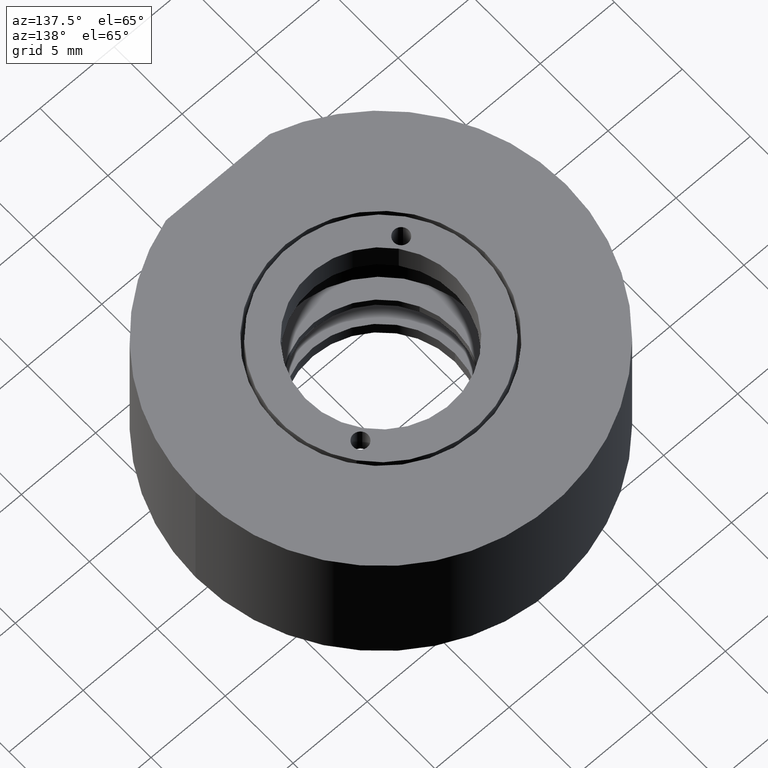
[diagram: clean part render]
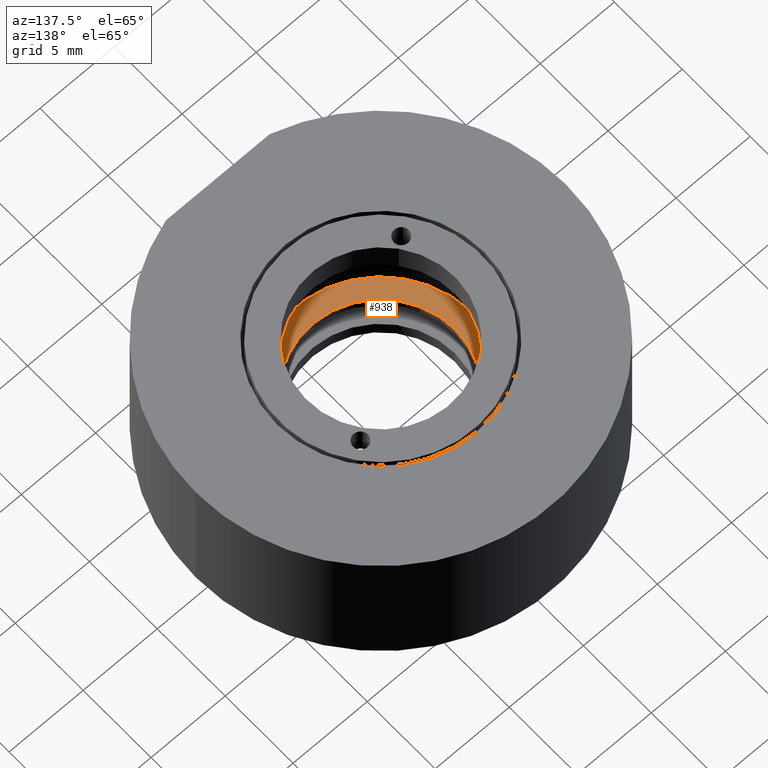
[diagram: same view with one face highlighted and labeled with its STEP entity id]
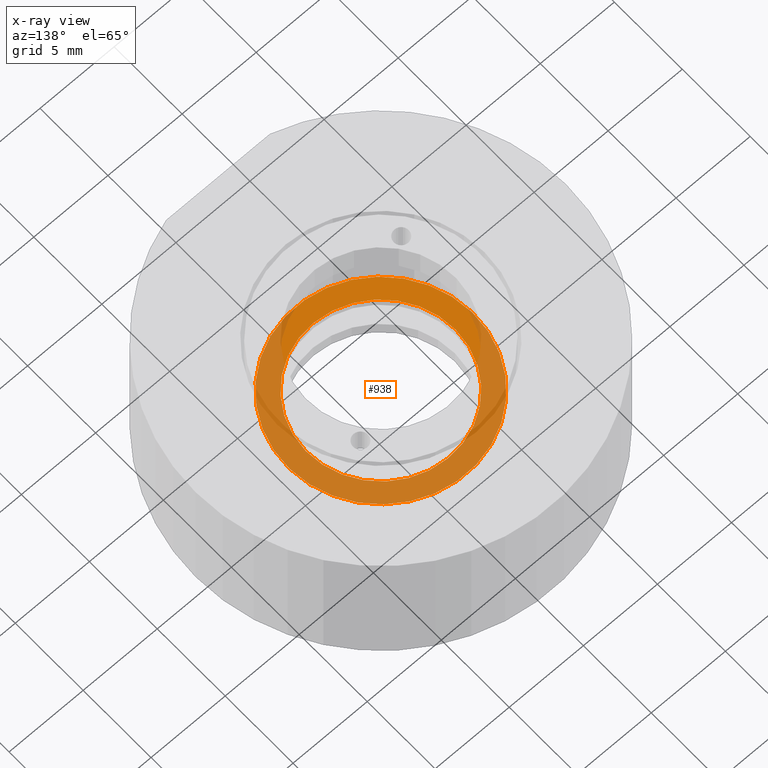
[diagram: x-ray of the same camera — body ghosted, the highlighted face saturated]
A machine part, auxiliary view. The second image highlights one B-rep face of the part: STEP entity #938.
The next image is the same camera in x-ray: the body ghosted, the highlighted face saturated — about 67% of this face is hidden behind the body in this view.
In plain terms, the highlighted planar face has unit normal (0, -0, 1).
Its self-contained STEP definition (entity closure, byte-faithful):
#1 = ORIENTED_EDGE ( 'NONE', *, *, #23, .T. ) ;
#23 = EDGE_CURVE ( 'NONE', #833, #99, #239, .T. ) ;
#26 = DIRECTION ( 'NONE',  ( 0.9070069596605020400, 0.4211156315400941800, 0.0000000000000000000 ) ) ;
#58 = DIRECTION ( 'NONE',  ( 0.9070069596605020400, 0.4211156315400941800, 0.0000000000000000000 ) ) ;
#95 = CARTESIAN_POINT ( 'NONE',  ( -10.64545028811109300, 4.389876407468493700, -3.645926263751526600 ) ) ;
#99 = VERTEX_POINT ( 'NONE', #869 ) ;
#120 = DIRECTION ( 'NONE',  ( 0.0000000000000000000, -0.0000000000000000000, 1.000000000000000000 ) ) ;
#189 = DIRECTION ( 'NONE',  ( 0.9070069596605021500, 0.4211156315400941300, 0.0000000000000000000 ) ) ;
#197 = EDGE_CURVE ( 'NONE', #398, #780, #521, .T. ) ;
#204 = CIRCLE ( 'NONE', #655, 5.000000000000012400 ) ;
#238 = AXIS2_PLACEMENT_3D ( 'NONE', #341, #120, #266 ) ;
#239 = CIRCLE ( 'NONE', #744, 6.250000000000015100 ) ;
#242 = DIRECTION ( 'NONE',  ( 0.0000000000000000000, 0.0000000000000000000, 1.000000000000000000 ) ) ;
#266 = DIRECTION ( 'NONE',  ( 0.9070069596605021500, 0.4211156315400941800, 0.0000000000000000000 ) ) ;
#341 = CARTESIAN_POINT ( 'NONE',  ( -10.64545028811109300, 4.389876407468493700, -3.645926263751526600 ) ) ;
#348 = EDGE_LOOP ( 'NONE', ( #960, #1 ) ) ;
#390 = EDGE_CURVE ( 'NONE', #780, #398, #204, .T. ) ;
#398 = VERTEX_POINT ( 'NONE', #781 ) ;
#436 = ORIENTED_EDGE ( 'NONE', *, *, #197, .F. ) ;
#439 = AXIS2_PLACEMENT_3D ( 'NONE', #882, #507, #58 ) ;
#442 = FACE_BOUND ( 'NONE', #522, .T. ) ;
#499 = PLANE ( 'NONE',  #238 ) ;
#503 = CARTESIAN_POINT ( 'NONE',  ( -10.64545028811109300, 4.389876407468493700, -3.645926263751526600 ) ) ;
#507 = DIRECTION ( 'NONE',  ( 0.0000000000000000000, 0.0000000000000000000, 1.000000000000000000 ) ) ;
#521 = CIRCLE ( 'NONE', #439, 5.000000000000012400 ) ;
#522 = EDGE_LOOP ( 'NONE', ( #580, #436 ) ) ;
#545 = AXIS2_PLACEMENT_3D ( 'NONE', #503, #650, #887 ) ;
#548 = FACE_OUTER_BOUND ( 'NONE', #348, .T. ) ;
#580 = ORIENTED_EDGE ( 'NONE', *, *, #390, .F. ) ;
#650 = DIRECTION ( 'NONE',  ( 0.0000000000000000000, 0.0000000000000000000, 1.000000000000000000 ) ) ;
#655 = AXIS2_PLACEMENT_3D ( 'NONE', #95, #242, #26 ) ;
#674 = CIRCLE ( 'NONE', #545, 6.250000000000015100 ) ;
#717 = CARTESIAN_POINT ( 'NONE',  ( -15.18048508641360300, 2.284298249768023300, -3.645926263751526600 ) ) ;
#744 = AXIS2_PLACEMENT_3D ( 'NONE', #795, #791, #189 ) ;
#780 = VERTEX_POINT ( 'NONE', #717 ) ;
#781 = CARTESIAN_POINT ( 'NONE',  ( -6.110415489808582700, 6.495454565168964600, -3.645926263751526600 ) ) ;
#791 = DIRECTION ( 'NONE',  ( 0.0000000000000000000, 0.0000000000000000000, 1.000000000000000000 ) ) ;
#795 = CARTESIAN_POINT ( 'NONE',  ( -10.64545028811109300, 4.389876407468493700, -3.645926263751526600 ) ) ;
#833 = VERTEX_POINT ( 'NONE', #860 ) ;
#860 = CARTESIAN_POINT ( 'NONE',  ( -4.976656790232953900, 7.021849104594082300, -3.645926263751526600 ) ) ;
#869 = CARTESIAN_POINT ( 'NONE',  ( -16.31424378598923000, 1.757903710342905200, -3.645926263751526600 ) ) ;
#882 = CARTESIAN_POINT ( 'NONE',  ( -10.64545028811109300, 4.389876407468493700, -3.645926263751526600 ) ) ;
#887 = DIRECTION ( 'NONE',  ( 0.9070069596605021500, 0.4211156315400941300, 0.0000000000000000000 ) ) ;
#896 = EDGE_CURVE ( 'NONE', #99, #833, #674, .T. ) ;
#938 = ADVANCED_FACE ( 'NONE', ( #548, #442 ), #499, .T. ) ;
#960 = ORIENTED_EDGE ( 'NONE', *, *, #896, .T. ) ;